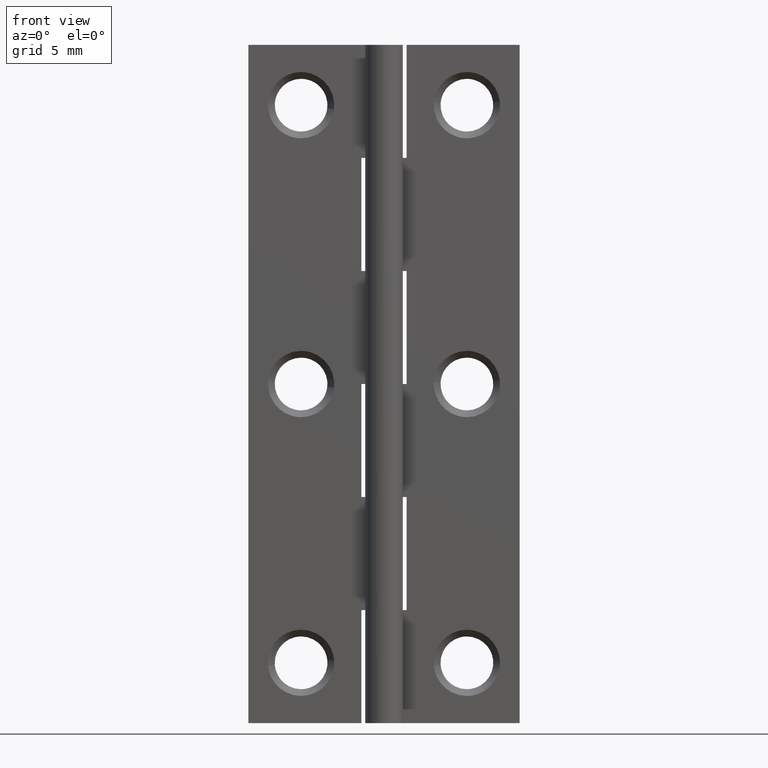
[diagram: clean part render]
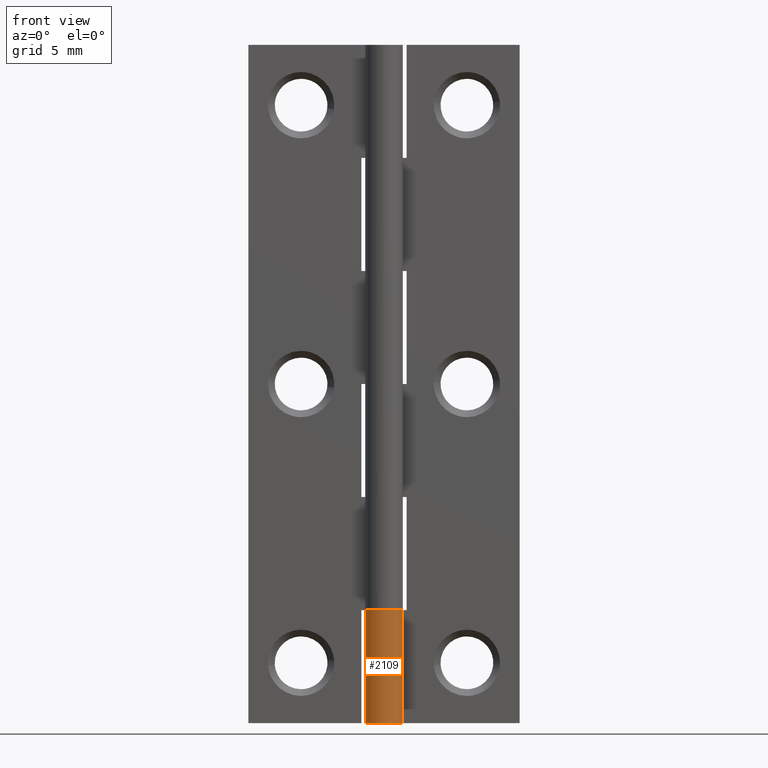
[diagram: same view with one face highlighted and labeled with its STEP entity id]
A machine part, front view. The second image highlights one B-rep face of the part: STEP entity #2109.
In plain terms, the highlighted face is a freeform B-spline surface patch.
Its self-contained STEP definition (entity closure, byte-faithful):
#1481=CARTESIAN_POINT('',(0.0,1.250000000000000,7.500000000000000));
#1482=VERTEX_POINT('',#1481);
#1488=CARTESIAN_POINT('',(1.035615758860396,0.700000000000000,7.500000000000000));
#1489=VERTEX_POINT('',#1488);
#1490=CARTESIAN_POINT('',(0.0,1.250000000000000,7.500000000000000));
#1491=CARTESIAN_POINT('',(-0.976852103636802,1.250000000000000,7.500000000000000));
#1492=CARTESIAN_POINT('',(-1.212943245861843,0.302107070950246,7.500000000000000));
#1493=CARTESIAN_POINT('',(-1.449034388086884,-0.645785858099508,7.500000000000000));
#1494=CARTESIAN_POINT('',(-0.586301969977928,-1.103970108290981,7.500000000000000));
#1495=CARTESIAN_POINT('',(0.276430448131027,-1.562154358482455,7.500000000000000));
#1496=CARTESIAN_POINT('',(0.929541692514018,-0.835734552282107,7.500000000000000));
#1497=CARTESIAN_POINT('',(1.582652936897008,-0.109314746081762,7.500000000000000));
#1498=CARTESIAN_POINT('',(1.035615758860398,0.700000000000001,7.500000000000000));
#1506=(BOUNDED_CURVE()B_SPLINE_CURVE(2,(#1490,#1491,#1492,#1493,#1494,#1495,#1496,#1497,#1498),.UNSPECIFIED.,.F.,.U.)B_SPLINE_CURVE_WITH_KNOTS((3,2,2,2,3),(0.0,0.250000000000000,0.500000000000000,0.750000000000000,1.0),.UNSPECIFIED.)CURVE()GEOMETRIC_REPRESENTATION_ITEM()RATIONAL_B_SPLINE_CURVE((1.0,0.787935802194632,1.0,0.787935802194632,1.0,0.787935802194632,1.0,0.787935802194632,1.0))REPRESENTATION_ITEM(''));
#1507=EDGE_CURVE('',#1482,#1489,#1506,.T.);
#1777=CARTESIAN_POINT('',(1.035615758860396,0.700000000000000,0.0));
#1778=VERTEX_POINT('',#1777);
#1784=CARTESIAN_POINT('',(0.0,1.250000000000000,0.0));
#1785=VERTEX_POINT('',#1784);
#1786=CARTESIAN_POINT('',(1.035615758860396,0.700000000000000,0.0));
#1787=CARTESIAN_POINT('',(1.582652936897009,-0.109314746081761,0.0));
#1788=CARTESIAN_POINT('',(0.929541692514019,-0.835734552282107,0.0));
#1789=CARTESIAN_POINT('',(0.276430448131029,-1.562154358482453,0.0));
#1790=CARTESIAN_POINT('',(-0.586301969977927,-1.103970108290982,0.0));
#1791=CARTESIAN_POINT('',(-1.449034388086884,-0.645785858099510,0.0));
#1792=CARTESIAN_POINT('',(-1.212943245861843,0.302107070950246,0.0));
#1793=CARTESIAN_POINT('',(-0.976852103636803,1.250000000000000,0.0));
#1794=CARTESIAN_POINT('',(0.0,1.250000000000000,0.0));
#1802=(BOUNDED_CURVE()B_SPLINE_CURVE(2,(#1786,#1787,#1788,#1789,#1790,#1791,#1792,#1793,#1794),.UNSPECIFIED.,.F.,.U.)B_SPLINE_CURVE_WITH_KNOTS((3,2,2,2,3),(0.0,0.250000000000000,0.500000000000000,0.750000000000000,1.0),.UNSPECIFIED.)CURVE()GEOMETRIC_REPRESENTATION_ITEM()RATIONAL_B_SPLINE_CURVE((1.0,0.787935802194633,1.0,0.787935802194633,1.0,0.787935802194633,1.0,0.787935802194633,1.0))REPRESENTATION_ITEM(''));
#1803=EDGE_CURVE('',#1778,#1785,#1802,.T.);
#1866=CARTESIAN_POINT('',(1.035615758860396,0.700000000000000,7.500000000000000));
#1867=CARTESIAN_POINT('',(1.035615758860396,0.700000000000000,0.0));
#1868=QUASI_UNIFORM_CURVE('',1,(#1866,#1867),.UNSPECIFIED.,.F.,.U.);
#1869=EDGE_CURVE('',#1489,#1778,#1868,.T.);
#1929=CARTESIAN_POINT('',(0.0,1.250000000000000,7.500000000000000));
#1930=CARTESIAN_POINT('',(0.0,1.250000000000000,0.0));
#1931=QUASI_UNIFORM_CURVE('',1,(#1929,#1930),.UNSPECIFIED.,.F.,.U.);
#1932=EDGE_CURVE('',#1482,#1785,#1931,.T.);
#2081=CARTESIAN_POINT('',(0.053308049256894,1.248862783449176,7.687500000000001));
#2082=CARTESIAN_POINT('',(0.053308049256894,1.248862783449176,-0.192187500000000));
#2083=CARTESIAN_POINT('',(-1.535614722535136,1.316686386255366,7.687500000000000));
#2084=CARTESIAN_POINT('',(-1.535614722535136,1.316686386255366,-0.192187500000000));
#2085=CARTESIAN_POINT('',(-1.226098656193504,-0.243273683904534,7.687500000000001));
#2086=CARTESIAN_POINT('',(-1.226098656193504,-0.243273683904534,-0.192187500000000));
#2087=CARTESIAN_POINT('',(-0.916582589851871,-1.803233754064436,7.687500000000000));
#2088=CARTESIAN_POINT('',(-0.916582589851871,-1.803233754064436,-0.192187500000000));
#2089=CARTESIAN_POINT('',(0.526079676116742,-1.133904834797393,7.687500000000001));
#2090=CARTESIAN_POINT('',(0.526079676116742,-1.133904834797393,-0.192187500000000));
#2091=CARTESIAN_POINT('',(1.968741942085355,-0.464575915530351,7.687500000000000));
#2092=CARTESIAN_POINT('',(1.968741942085355,-0.464575915530351,-0.192187500000000));
#2093=CARTESIAN_POINT('',(0.977501934085626,0.779095609574883,7.687500000000001));
#2094=CARTESIAN_POINT('',(0.977501934085626,0.779095609574883,-0.192187500000000));
#2102=(BOUNDED_SURFACE()B_SPLINE_SURFACE(1,2,((#2081,#2083,#2085,#2087,#2089,#2091,#2093),(#2082,#2084,#2086,#2088,#2090,#2092,#2094)),.UNSPECIFIED.,.F.,.F.,.U.)B_SPLINE_SURFACE_WITH_KNOTS((2,2),(3,2,2,3),(0.0,7.879687500000002),(0.0,2.429667178109279,4.859334356218557,7.289001534327836),.UNSPECIFIED.)GEOMETRIC_REPRESENTATION_ITEM()RATIONAL_B_SPLINE_SURFACE(((1.0,0.617951097721073,1.0,0.617951097721073,1.0,0.617951097721073,1.0),(1.0,0.617951097721073,1.0,0.617951097721073,1.0,0.617951097721073,1.0)))REPRESENTATION_ITEM('')SURFACE());
#2103=ORIENTED_EDGE('',*,*,#1869,.F.);
#2104=ORIENTED_EDGE('',*,*,#1507,.F.);
#2105=ORIENTED_EDGE('',*,*,#1932,.T.);
#2106=ORIENTED_EDGE('',*,*,#1803,.F.);
#2107=EDGE_LOOP('',(#2103,#2104,#2105,#2106));
#2108=FACE_OUTER_BOUND('',#2107,.T.);
#2109=ADVANCED_FACE('',(#2108),#2102,.T.);